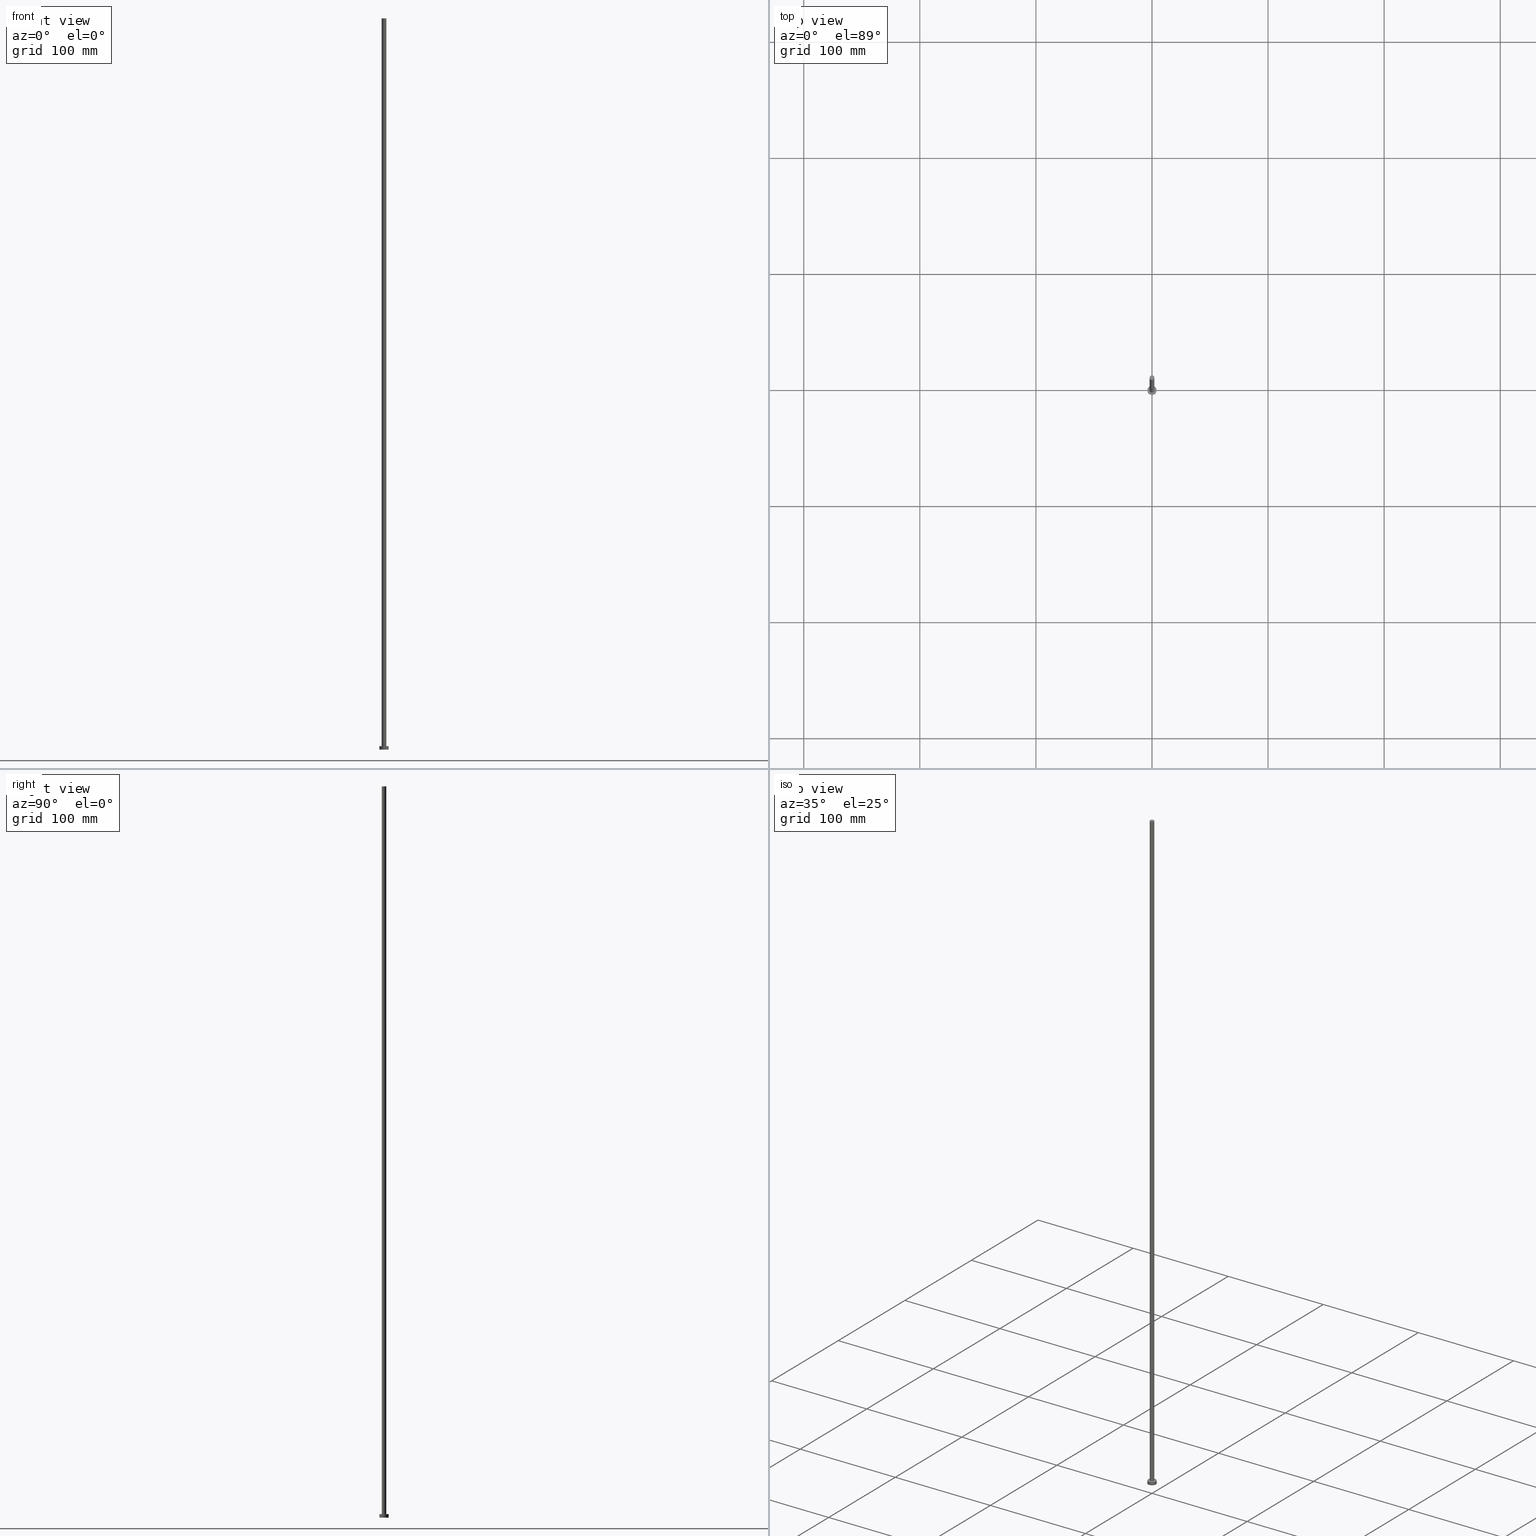
[diagram: canonical four-view strip — front | top / right | iso, engineering-drawing reading convention]
A machine part, canonical four-view strip (front | top / right | iso — engineering-drawing reading convention). The complete STEP part file that produces these views, byte-faithful:
ISO-10303-21;
HEADER;
FILE_DESCRIPTION (( 'STEP AP203' ),
    '1' );
FILE_NAME ('ac83.STEP',
    '2026-02-06T12:42:06',
    ( '' ),
    ( '' ),
    'SwSTEP 2.0',
    'SolidWorks 2019',
    '' );
FILE_SCHEMA (( 'CONFIG_CONTROL_DESIGN' ));
ENDSEC;

DATA;
#1 = ORIENTED_EDGE ( 'NONE', *, *, #9, .T. ) ;
#2 = ORIENTED_EDGE ( 'NONE', *, *, #123, .F. ) ;
#3 = AXIS2_PLACEMENT_3D ( 'NONE', #209, #244, #12 ) ;
#4 = DIRECTION ( 'NONE',  ( 1.000000000000000000, 0.000000000000000000, 0.000000000000000000 ) ) ;
#5 = CARTESIAN_POINT ( 'NONE',  ( 0.000000000000000000, 0.000000000000000000, 3.000000000000000000 ) ) ;
#6 = ORIENTED_EDGE ( 'NONE', *, *, #113, .T. ) ;
#7 = ORIENTED_EDGE ( 'NONE', *, *, #100, .T. ) ;
#8 = SECURITY_CLASSIFICATION ( '', '', #235 ) ;
#9 = EDGE_CURVE ( 'NONE', #97, #136, #170, .T. ) ;
#10 = CYLINDRICAL_SURFACE ( 'NONE', #233, 4.000000000000000000 ) ;
#11 = DIRECTION ( 'NONE',  ( -0.000000000000000000, -0.000000000000000000, -1.000000000000000000 ) ) ;
#12 = DIRECTION ( 'NONE',  ( 1.000000000000000000, 0.000000000000000000, 0.000000000000000000 ) ) ;
#13 = DIRECTION ( 'NONE',  ( 1.000000000000000000, 0.000000000000000000, 0.000000000000000000 ) ) ;
#14 = DIRECTION ( 'NONE',  ( 0.000000000000000000, 0.000000000000000000, 1.000000000000000000 ) ) ;
#15 = SHAPE_DEFINITION_REPRESENTATION ( #104, #102 ) ;
#16 = EDGE_CURVE ( 'NONE', #58, #156, #41, .T. ) ;
#17 = PERSON_AND_ORGANIZATION_ROLE ( 'design_supplier' ) ;
#18 =( LENGTH_UNIT ( ) NAMED_UNIT ( * ) SI_UNIT ( .MILLI., .METRE. ) );
#19 = DATE_AND_TIME ( #69, #24 ) ;
#20 = DIRECTION ( 'NONE',  ( 0.000000000000000000, 0.000000000000000000, 1.000000000000000000 ) ) ;
#21 = PRODUCT_RELATED_PRODUCT_CATEGORY ( 'detail', '', ( #176 ) ) ;
#22 = CIRCLE ( 'NONE', #186, 2.000000000000000000 ) ;
#23 = PLANE ( 'NONE',  #109 ) ;
#24 = LOCAL_TIME ( 13, 42, 6.000000000000000000, #127 ) ;
#25 = ORIENTED_EDGE ( 'NONE', *, *, #111, .F. ) ;
#26 = ADVANCED_FACE ( 'NONE', ( #221, #43 ), #75, .T. ) ;
#27 = CARTESIAN_POINT ( 'NONE',  ( 0.000000000000000000, 0.000000000000000000, 3.000000000000000000 ) ) ;
#28 = ORIENTED_EDGE ( 'NONE', *, *, #80, .T. ) ;
#29 = CIRCLE ( 'NONE', #54, 4.000000000000000000 ) ;
#30 = AXIS2_PLACEMENT_3D ( 'NONE', #137, #14, #224 ) ;
#31 = EDGE_LOOP ( 'NONE', ( #116, #60, #118, #28 ) ) ;
#32 = DIRECTION ( 'NONE',  ( -0.000000000000000000, -0.000000000000000000, -1.000000000000000000 ) ) ;
#33 = CARTESIAN_POINT ( 'NONE',  ( 0.000000000000000000, 0.000000000000000000, 630.0000000000000000 ) ) ;
#34 = CIRCLE ( 'NONE', #3, 4.000000000000000000 ) ;
#35 = CARTESIAN_POINT ( 'NONE',  ( 2.000000000000000000, 2.449293598294706414E-16, 630.0000000000000000 ) ) ;
#36 = APPROVAL_DATE_TIME ( #107, #169 ) ;
#37 = DIRECTION ( 'NONE',  ( 1.000000000000000000, 0.000000000000000000, 0.000000000000000000 ) ) ;
#38 = CALENDAR_DATE ( 2026, 6, 2 ) ;
#39 = EDGE_CURVE ( 'NONE', #95, #192, #157, .T. ) ;
#40 = COORDINATED_UNIVERSAL_TIME_OFFSET ( 1, 0, .AHEAD. ) ;
#41 = CIRCLE ( 'NONE', #177, 2.000000000000000000 ) ;
#42 = ORIENTED_EDGE ( 'NONE', *, *, #16, .T. ) ;
#43 = FACE_OUTER_BOUND ( 'NONE', #132, .T. ) ;
#44 = ORIENTED_EDGE ( 'NONE', *, *, #123, .T. ) ;
#45 = CARTESIAN_POINT ( 'NONE',  ( 4.000000000000000000, 4.898587196589412829E-16, 3.000000000000000000 ) ) ;
#46 = ADVANCED_FACE ( 'NONE', ( #222 ), #161, .T. ) ;
#47 = CARTESIAN_POINT ( 'NONE',  ( 4.000000000000000000, 4.898587196589412829E-16, 0.000000000000000000 ) ) ;
#48 = FACE_OUTER_BOUND ( 'NONE', #194, .T. ) ;
#49 = DIRECTION ( 'NONE',  ( -0.000000000000000000, -0.000000000000000000, -1.000000000000000000 ) ) ;
#50 = AXIS2_PLACEMENT_3D ( 'NONE', #55, #20, #214 ) ;
#51 = CARTESIAN_POINT ( 'NONE',  ( -2.000000000000000000, 0.000000000000000000, 630.0000000000000000 ) ) ;
#52 = PERSON_AND_ORGANIZATION ( #196, #77 ) ;
#53 = APPROVAL_STATUS ( 'not_yet_approved' ) ;
#54 = AXIS2_PLACEMENT_3D ( 'NONE', #128, #204, #37 ) ;
#55 = CARTESIAN_POINT ( 'NONE',  ( 0.000000000000000000, 0.000000000000000000, 0.000000000000000000 ) ) ;
#56 = APPROVAL_ROLE ( '' ) ;
#57 = CC_DESIGN_DATE_AND_TIME_ASSIGNMENT ( #187, #237, ( #8 ) ) ;
#58 = VERTEX_POINT ( 'NONE', #179 ) ;
#59 = DIRECTION ( 'NONE',  ( 1.000000000000000000, 0.000000000000000000, 0.000000000000000000 ) ) ;
#60 = ORIENTED_EDGE ( 'NONE', *, *, #113, .F. ) ;
#61 = DIRECTION ( 'NONE',  ( 1.000000000000000000, 0.000000000000000000, 0.000000000000000000 ) ) ;
#62 = ORIENTED_EDGE ( 'NONE', *, *, #212, .F. ) ;
#63 = FACE_OUTER_BOUND ( 'NONE', #190, .T. ) ;
#64 = CC_DESIGN_PERSON_AND_ORGANIZATION_ASSIGNMENT ( #52, #255, ( #176 ) ) ;
#65 = DIRECTION ( 'NONE',  ( -1.000000000000000000, 0.000000000000000000, 0.000000000000000000 ) ) ;
#66 = LINE ( 'NONE', #120, #84 ) ;
#67 = CARTESIAN_POINT ( 'NONE',  ( -4.000000000000000000, 0.000000000000000000, 3.000000000000000000 ) ) ;
#68 = CYLINDRICAL_SURFACE ( 'NONE', #231, 2.000000000000000000 ) ;
#69 = CALENDAR_DATE ( 2026, 6, 2 ) ;
#70 = CIRCLE ( 'NONE', #172, 2.000000000000000000 ) ;
#71 = DESIGN_CONTEXT ( 'detailed design', #201, 'design' ) ;
#72 = PERSON_AND_ORGANIZATION ( #196, #77 ) ;
#73 = VERTEX_POINT ( 'NONE', #47 ) ;
#74 = DIRECTION ( 'NONE',  ( 0.000000000000000000, 0.000000000000000000, 1.000000000000000000 ) ) ;
#75 = PLANE ( 'NONE',  #81 ) ;
#76 = ORIENTED_EDGE ( 'NONE', *, *, #9, .F. ) ;
#77 = ORGANIZATION ( 'NEUR�EN�', 'NEUR�EN�', '' ) ;
#78 = FACE_OUTER_BOUND ( 'NONE', #240, .T. ) ;
#79 = DIRECTION ( 'NONE',  ( -0.000000000000000000, -0.000000000000000000, -1.000000000000000000 ) ) ;
#80 = EDGE_CURVE ( 'NONE', #94, #73, #34, .T. ) ;
#81 = AXIS2_PLACEMENT_3D ( 'NONE', #117, #197, #96 ) ;
#82 = APPROVAL ( #53, 'NEUR�EN�' ) ;
#83 = DIRECTION ( 'NONE',  ( 1.000000000000000000, 0.000000000000000000, 0.000000000000000000 ) ) ;
#84 = VECTOR ( 'NONE', #140, 1000.000000000000000 ) ;
#85 = VECTOR ( 'NONE', #49, 1000.000000000000000 ) ;
#86 = DIRECTION ( 'NONE',  ( -1.000000000000000000, 0.000000000000000000, 0.000000000000000000 ) ) ;
#87 = DIRECTION ( 'NONE',  ( 0.000000000000000000, 0.000000000000000000, 1.000000000000000000 ) ) ;
#88 = APPROVAL_DATE_TIME ( #250, #159 ) ;
#89 = CALENDAR_DATE ( 2026, 6, 2 ) ;
#90 = ORIENTED_EDGE ( 'NONE', *, *, #108, .F. ) ;
#91 = EDGE_CURVE ( 'NONE', #156, #97, #249, .T. ) ;
#92 = ADVANCED_FACE ( 'NONE', ( #103 ), #68, .T. ) ;
#93 =( NAMED_UNIT ( * ) SI_UNIT ( $, .STERADIAN. ) SOLID_ANGLE_UNIT ( ) );
#94 = VERTEX_POINT ( 'NONE', #122 ) ;
#95 = VERTEX_POINT ( 'NONE', #45 ) ;
#96 = DIRECTION ( 'NONE',  ( 1.000000000000000000, 0.000000000000000000, -0.000000000000000000 ) ) ;
#97 = VERTEX_POINT ( 'NONE', #142 ) ;
#98 = VECTOR ( 'NONE', #101, 1000.000000000000000 ) ;
#99 = CC_DESIGN_PERSON_AND_ORGANIZATION_ASSIGNMENT ( #164, #215, ( #8 ) ) ;
#100 = EDGE_CURVE ( 'NONE', #136, #97, #22, .T. ) ;
#101 = DIRECTION ( 'NONE',  ( -0.000000000000000000, -0.000000000000000000, -1.000000000000000000 ) ) ;
#102 = ADVANCED_BREP_SHAPE_REPRESENTATION ( 'ac83', ( #162, #50 ), #138 ) ;
#103 = FACE_OUTER_BOUND ( 'NONE', #219, .T. ) ;
#104 = PRODUCT_DEFINITION_SHAPE ( 'NONE', 'NONE',  #213 ) ;
#105 = CARTESIAN_POINT ( 'NONE',  ( 2.000000000000000000, 2.449293598294706414E-16, 630.0000000000000000 ) ) ;
#106 = LINE ( 'NONE', #226, #85 ) ;
#107 = DATE_AND_TIME ( #208, #154 ) ;
#108 = EDGE_CURVE ( 'NONE', #156, #58, #70, .T. ) ;
#109 = AXIS2_PLACEMENT_3D ( 'NONE', #238, #229, #236 ) ;
#110 = APPLICATION_PROTOCOL_DEFINITION ( 'international standard', 'config_control_design', 1994, #201 ) ;
#111 = EDGE_CURVE ( 'NONE', #58, #136, #178, .T. ) ;
#112 = EDGE_LOOP ( 'NONE', ( #168, #76 ) ) ;
#113 = EDGE_CURVE ( 'NONE', #192, #95, #114, .T. ) ;
#114 = CIRCLE ( 'NONE', #143, 4.000000000000000000 ) ;
#115 = CC_DESIGN_APPROVAL ( #82, ( #171 ) ) ;
#116 = ORIENTED_EDGE ( 'NONE', *, *, #199, .F. ) ;
#117 = CARTESIAN_POINT ( 'NONE',  ( 0.000000000000000000, 0.000000000000000000, 3.000000000000000000 ) ) ;
#118 = ORIENTED_EDGE ( 'NONE', *, *, #212, .T. ) ;
#119 = ORIENTED_EDGE ( 'NONE', *, *, #39, .F. ) ;
#120 = CARTESIAN_POINT ( 'NONE',  ( 4.000000000000000000, 4.898587196589412829E-16, 3.000000000000000000 ) ) ;
#121 = ORIENTED_EDGE ( 'NONE', *, *, #39, .T. ) ;
#122 = CARTESIAN_POINT ( 'NONE',  ( -4.000000000000000000, 0.000000000000000000, 0.000000000000000000 ) ) ;
#123 = EDGE_CURVE ( 'NONE', #73, #94, #29, .T. ) ;
#124 = CARTESIAN_POINT ( 'NONE',  ( 0.000000000000000000, 0.000000000000000000, 630.0000000000000000 ) ) ;
#125 = CARTESIAN_POINT ( 'NONE',  ( 0.000000000000000000, 0.000000000000000000, 630.0000000000000000 ) ) ;
#126 = CC_DESIGN_APPROVAL ( #159, ( #213 ) ) ;
#127 = COORDINATED_UNIVERSAL_TIME_OFFSET ( 1, 0, .AHEAD. ) ;
#128 = CARTESIAN_POINT ( 'NONE',  ( 0.000000000000000000, 0.000000000000000000, 0.000000000000000000 ) ) ;
#129 = PERSON_AND_ORGANIZATION_ROLE ( 'creator' ) ;
#130 = APPROVAL_STATUS ( 'not_yet_approved' ) ;
#131 = APPROVAL_ROLE ( '' ) ;
#132 = EDGE_LOOP ( 'NONE', ( #6, #121 ) ) ;
#133 = ORIENTED_EDGE ( 'NONE', *, *, #80, .F. ) ;
#134 = EDGE_LOOP ( 'NONE', ( #133, #2 ) ) ;
#135 = ORIENTED_EDGE ( 'NONE', *, *, #199, .T. ) ;
#136 = VERTEX_POINT ( 'NONE', #174 ) ;
#137 = CARTESIAN_POINT ( 'NONE',  ( 0.000000000000000000, 0.000000000000000000, 630.0000000000000000 ) ) ;
#138 =( GEOMETRIC_REPRESENTATION_CONTEXT ( 3 ) GLOBAL_UNCERTAINTY_ASSIGNED_CONTEXT ( ( #245 ) ) GLOBAL_UNIT_ASSIGNED_CONTEXT ( ( #18, #149, #93 ) ) REPRESENTATION_CONTEXT ( 'NONE', 'WORKASPACE' ) );
#139 = DIRECTION ( 'NONE',  ( -0.000000000000000000, -0.000000000000000000, -1.000000000000000000 ) ) ;
#140 = DIRECTION ( 'NONE',  ( -0.000000000000000000, -0.000000000000000000, -1.000000000000000000 ) ) ;
#141 = CC_DESIGN_PERSON_AND_ORGANIZATION_ASSIGNMENT ( #72, #17, ( #171 ) ) ;
#142 = CARTESIAN_POINT ( 'NONE',  ( 2.000000000000000000, 2.449293598294706414E-16, 3.000000000000000000 ) ) ;
#143 = AXIS2_PLACEMENT_3D ( 'NONE', #206, #160, #13 ) ;
#144 = COORDINATED_UNIVERSAL_TIME_OFFSET ( 1, 0, .AHEAD. ) ;
#145 = PERSON_AND_ORGANIZATION ( #196, #77 ) ;
#146 = AXIS2_PLACEMENT_3D ( 'NONE', #27, #74, #4 ) ;
#147 = LOCAL_TIME ( 13, 42, 6.000000000000000000, #181 ) ;
#148 = PERSON_AND_ORGANIZATION_ROLE ( 'creator' ) ;
#149 =( NAMED_UNIT ( * ) PLANE_ANGLE_UNIT ( ) SI_UNIT ( $, .RADIAN. ) );
#150 = PERSON_AND_ORGANIZATION ( #196, #77 ) ;
#151 = CC_DESIGN_DATE_AND_TIME_ASSIGNMENT ( #185, #166, ( #213 ) ) ;
#152 = CARTESIAN_POINT ( 'NONE',  ( 0.000000000000000000, 0.000000000000000000, 630.0000000000000000 ) ) ;
#153 = DIRECTION ( 'NONE',  ( 0.000000000000000000, 0.000000000000000000, 1.000000000000000000 ) ) ;
#154 = LOCAL_TIME ( 13, 42, 6.000000000000000000, #144 ) ;
#155 = DIRECTION ( 'NONE',  ( -1.000000000000000000, 0.000000000000000000, 0.000000000000000000 ) ) ;
#156 = VERTEX_POINT ( 'NONE', #35 ) ;
#157 = CIRCLE ( 'NONE', #183, 4.000000000000000000 ) ;
#158 = FACE_OUTER_BOUND ( 'NONE', #134, .T. ) ;
#159 = APPROVAL ( #211, 'NEUR�EN�' ) ;
#160 = DIRECTION ( 'NONE',  ( 0.000000000000000000, 0.000000000000000000, 1.000000000000000000 ) ) ;
#161 = CYLINDRICAL_SURFACE ( 'NONE', #239, 4.000000000000000000 ) ;
#162 = MANIFOLD_SOLID_BREP ( 'P�idat vysunut�m3', #210 ) ;
#163 = COORDINATED_UNIVERSAL_TIME_OFFSET ( 1, 0, .AHEAD. ) ;
#164 = PERSON_AND_ORGANIZATION ( #196, #77 ) ;
#165 = CC_DESIGN_PERSON_AND_ORGANIZATION_ASSIGNMENT ( #150, #129, ( #171 ) ) ;
#166 = DATE_TIME_ROLE ( 'creation_date' ) ;
#167 = APPROVAL_DATE_TIME ( #19, #82 ) ;
#168 = ORIENTED_EDGE ( 'NONE', *, *, #100, .F. ) ;
#169 = APPROVAL ( #130, 'NEUR�EN�' ) ;
#170 = CIRCLE ( 'NONE', #146, 2.000000000000000000 ) ;
#171 = PRODUCT_DEFINITION_FORMATION_WITH_SPECIFIED_SOURCE ( 'LIBOVOLN�', '', #176, .NOT_KNOWN. ) ;
#172 = AXIS2_PLACEMENT_3D ( 'NONE', #124, #87, #83 ) ;
#173 = APPROVAL_PERSON_ORGANIZATION ( #253, #159, #56 ) ;
#174 = CARTESIAN_POINT ( 'NONE',  ( -2.000000000000000000, 0.000000000000000000, 3.000000000000000000 ) ) ;
#175 = CARTESIAN_POINT ( 'NONE',  ( 0.000000000000000000, 0.000000000000000000, 3.000000000000000000 ) ) ;
#176 = PRODUCT ( 'ac83', 'ac83', '', ( #188 ) ) ;
#177 = AXIS2_PLACEMENT_3D ( 'NONE', #152, #241, #59 ) ;
#178 = LINE ( 'NONE', #51, #98 ) ;
#179 = CARTESIAN_POINT ( 'NONE',  ( -2.000000000000000000, 0.000000000000000000, 630.0000000000000000 ) ) ;
#180 = PLANE ( 'NONE',  #30 ) ;
#181 = COORDINATED_UNIVERSAL_TIME_OFFSET ( 1, 0, .AHEAD. ) ;
#182 = ADVANCED_FACE ( 'NONE', ( #48 ), #10, .T. ) ;
#183 = AXIS2_PLACEMENT_3D ( 'NONE', #5, #153, #61 ) ;
#184 = APPROVAL_PERSON_ORGANIZATION ( #232, #82, #131 ) ;
#185 = DATE_AND_TIME ( #89, #147 ) ;
#186 = AXIS2_PLACEMENT_3D ( 'NONE', #207, #228, #248 ) ;
#187 = DATE_AND_TIME ( #251, #202 ) ;
#188 = MECHANICAL_CONTEXT ( 'NONE', #195, 'mechanical' ) ;
#189 = APPROVAL_PERSON_ORGANIZATION ( #145, #169, #230 ) ;
#190 = EDGE_LOOP ( 'NONE', ( #42, #242 ) ) ;
#191 = CC_DESIGN_PERSON_AND_ORGANIZATION_ASSIGNMENT ( #252, #148, ( #213 ) ) ;
#192 = VERTEX_POINT ( 'NONE', #67 ) ;
#193 = ORIENTED_EDGE ( 'NONE', *, *, #91, .F. ) ;
#194 = EDGE_LOOP ( 'NONE', ( #119, #135, #44, #62 ) ) ;
#195 = APPLICATION_CONTEXT ( 'configuration controlled 3d designs of mechanical parts and assemblies' ) ;
#196 = PERSON ( 'NEUR�EN�', 'NEUR�EN�', 'NEUR�EN�', ('NEUR�EN�'), ('NEUR�EN�'), ('NEUR�EN�') ) ;
#197 = DIRECTION ( 'NONE',  ( 0.000000000000000000, 0.000000000000000000, 1.000000000000000000 ) ) ;
#198 = CC_DESIGN_APPROVAL ( #169, ( #8 ) ) ;
#199 = EDGE_CURVE ( 'NONE', #95, #73, #66, .T. ) ;
#200 = ORIENTED_EDGE ( 'NONE', *, *, #111, .T. ) ;
#201 = APPLICATION_CONTEXT ( 'configuration controlled 3d designs of mechanical parts and assemblies' ) ;
#202 = LOCAL_TIME ( 13, 42, 6.000000000000000000, #40 ) ;
#203 = CYLINDRICAL_SURFACE ( 'NONE', #254, 2.000000000000000000 ) ;
#204 = DIRECTION ( 'NONE',  ( 0.000000000000000000, 0.000000000000000000, 1.000000000000000000 ) ) ;
#205 = VECTOR ( 'NONE', #139, 1000.000000000000000 ) ;
#206 = CARTESIAN_POINT ( 'NONE',  ( 0.000000000000000000, 0.000000000000000000, 3.000000000000000000 ) ) ;
#207 = CARTESIAN_POINT ( 'NONE',  ( 0.000000000000000000, 0.000000000000000000, 3.000000000000000000 ) ) ;
#208 = CALENDAR_DATE ( 2026, 6, 2 ) ;
#209 = CARTESIAN_POINT ( 'NONE',  ( 0.000000000000000000, 0.000000000000000000, 0.000000000000000000 ) ) ;
#210 = CLOSED_SHELL ( 'NONE', ( #218, #182, #46, #26, #243, #92, #223 ) ) ;
#211 = APPROVAL_STATUS ( 'not_yet_approved' ) ;
#212 = EDGE_CURVE ( 'NONE', #192, #94, #106, .T. ) ;
#213 = PRODUCT_DEFINITION ( 'NEZN�M�', '', #171, #71 ) ;
#214 = DIRECTION ( 'NONE',  ( 1.000000000000000000, 0.000000000000000000, 0.000000000000000000 ) ) ;
#215 = PERSON_AND_ORGANIZATION_ROLE ( 'classification_officer' ) ;
#216 = APPLICATION_PROTOCOL_DEFINITION ( 'international standard', 'config_control_design', 1994, #195 ) ;
#217 = ORIENTED_EDGE ( 'NONE', *, *, #16, .F. ) ;
#218 = ADVANCED_FACE ( 'NONE', ( #78 ), #203, .T. ) ;
#219 = EDGE_LOOP ( 'NONE', ( #193, #217, #200, #7 ) ) ;
#220 = ORIENTED_EDGE ( 'NONE', *, *, #91, .T. ) ;
#221 = FACE_BOUND ( 'NONE', #112, .T. ) ;
#222 = FACE_OUTER_BOUND ( 'NONE', #31, .T. ) ;
#223 = ADVANCED_FACE ( 'NONE', ( #63 ), #180, .T. ) ;
#224 = DIRECTION ( 'NONE',  ( 1.000000000000000000, 0.000000000000000000, -0.000000000000000000 ) ) ;
#225 = DIRECTION ( 'NONE',  ( -0.000000000000000000, -0.000000000000000000, -1.000000000000000000 ) ) ;
#226 = CARTESIAN_POINT ( 'NONE',  ( -4.000000000000000000, 0.000000000000000000, 3.000000000000000000 ) ) ;
#227 = CC_DESIGN_SECURITY_CLASSIFICATION ( #8, ( #171 ) ) ;
#228 = DIRECTION ( 'NONE',  ( 0.000000000000000000, 0.000000000000000000, 1.000000000000000000 ) ) ;
#229 = DIRECTION ( 'NONE',  ( 0.000000000000000000, 0.000000000000000000, 1.000000000000000000 ) ) ;
#230 = APPROVAL_ROLE ( '' ) ;
#231 = AXIS2_PLACEMENT_3D ( 'NONE', #33, #11, #65 ) ;
#232 = PERSON_AND_ORGANIZATION ( #196, #77 ) ;
#233 = AXIS2_PLACEMENT_3D ( 'NONE', #175, #32, #247 ) ;
#234 = LOCAL_TIME ( 13, 42, 6.000000000000000000, #163 ) ;
#235 = SECURITY_CLASSIFICATION_LEVEL ( 'unclassified' ) ;
#236 = DIRECTION ( 'NONE',  ( 1.000000000000000000, 0.000000000000000000, -0.000000000000000000 ) ) ;
#237 = DATE_TIME_ROLE ( 'classification_date' ) ;
#238 = CARTESIAN_POINT ( 'NONE',  ( 0.000000000000000000, 0.000000000000000000, 0.000000000000000000 ) ) ;
#239 = AXIS2_PLACEMENT_3D ( 'NONE', #246, #225, #86 ) ;
#240 = EDGE_LOOP ( 'NONE', ( #90, #220, #1, #25 ) ) ;
#241 = DIRECTION ( 'NONE',  ( 0.000000000000000000, 0.000000000000000000, 1.000000000000000000 ) ) ;
#242 = ORIENTED_EDGE ( 'NONE', *, *, #108, .T. ) ;
#243 = ADVANCED_FACE ( 'NONE', ( #158 ), #23, .F. ) ;
#244 = DIRECTION ( 'NONE',  ( 0.000000000000000000, 0.000000000000000000, 1.000000000000000000 ) ) ;
#245 = UNCERTAINTY_MEASURE_WITH_UNIT (LENGTH_MEASURE( 1.000000000000000082E-05 ), #18, 'distance_accuracy_value', 'NONE');
#246 = CARTESIAN_POINT ( 'NONE',  ( 0.000000000000000000, 0.000000000000000000, 3.000000000000000000 ) ) ;
#247 = DIRECTION ( 'NONE',  ( -1.000000000000000000, 0.000000000000000000, 0.000000000000000000 ) ) ;
#248 = DIRECTION ( 'NONE',  ( 1.000000000000000000, 0.000000000000000000, 0.000000000000000000 ) ) ;
#249 = LINE ( 'NONE', #105, #205 ) ;
#250 = DATE_AND_TIME ( #38, #234 ) ;
#251 = CALENDAR_DATE ( 2026, 6, 2 ) ;
#252 = PERSON_AND_ORGANIZATION ( #196, #77 ) ;
#253 = PERSON_AND_ORGANIZATION ( #196, #77 ) ;
#254 = AXIS2_PLACEMENT_3D ( 'NONE', #125, #79, #155 ) ;
#255 = PERSON_AND_ORGANIZATION_ROLE ( 'design_owner' ) ;
ENDSEC;
END-ISO-10303-21;
